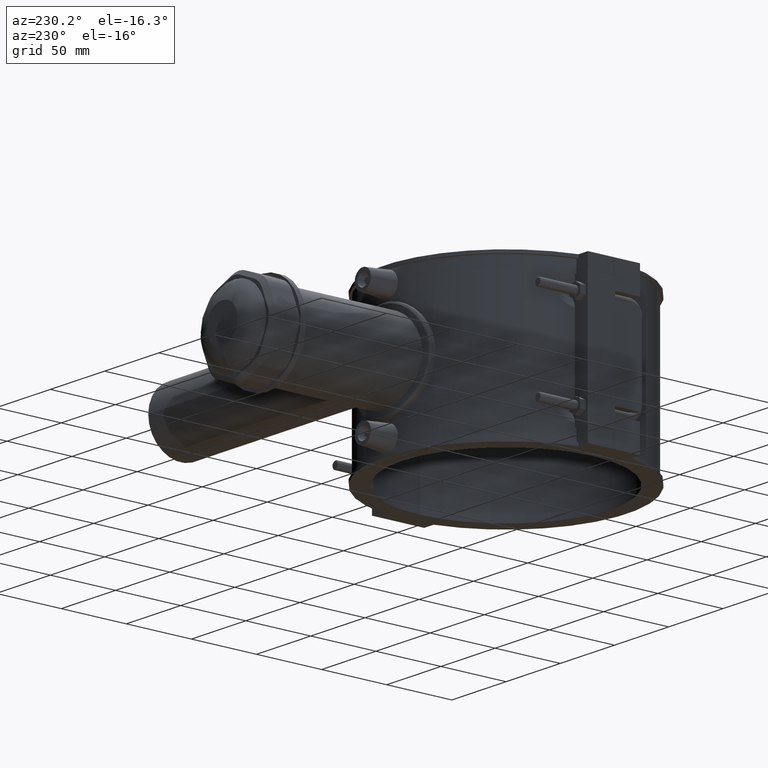
[diagram: clean part render]
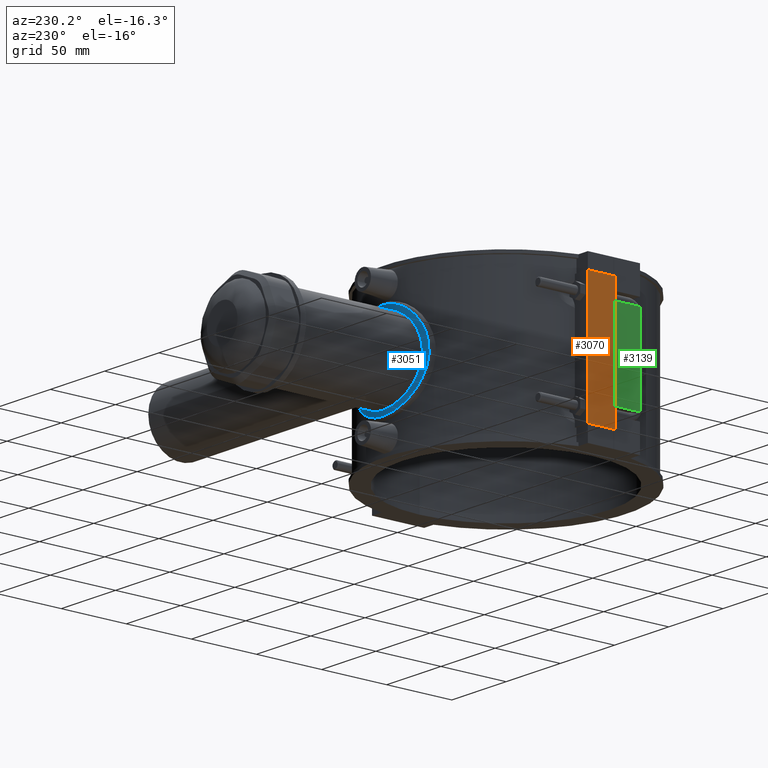
[diagram: same view with three faces highlighted in distinct colors, each labeled with its STEP entity id]
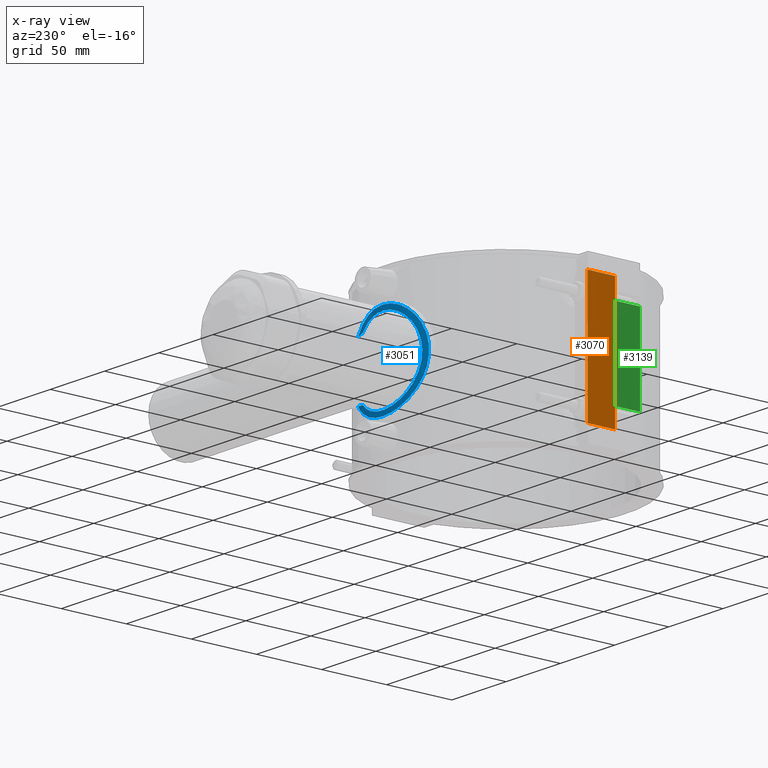
[diagram: x-ray of the same camera — body ghosted, the three highlighted faces saturated]
A machine part, auxiliary view with three faces highlighted in distinct colors.
The next image is the same camera in x-ray (body ghosted, the three faces saturated) — at least one of them is partly hidden behind the body in this view.
Their STEP definitions:

[orange] entity #3070 — the highlighted planar face has unit normal (1, 0, 0).
#147=LINE('',#5463,#426);
#150=LINE('',#5469,#429);
#153=LINE('',#5474,#432);
#166=LINE('',#5531,#445);
#426=VECTOR('',#3802,20.9500000000001);
#429=VECTOR('',#3807,20.9500000000001);
#432=VECTOR('',#3812,94.4);
#445=VECTOR('',#3831,94.4);
#631=PLANE('',#3305);
#928=FACE_OUTER_BOUND('',#1126,.T.);
#1126=EDGE_LOOP('',(#2408,#2409,#2410,#2411));
#1466=VERTEX_POINT('',#5460);
#1467=VERTEX_POINT('',#5462);
#1468=VERTEX_POINT('',#5466);
#1469=VERTEX_POINT('',#5468);
#1810=EDGE_CURVE('',#1467,#1466,#147,.T.);
#1813=EDGE_CURVE('',#1469,#1468,#150,.T.);
#1816=EDGE_CURVE('',#1467,#1468,#153,.T.);
#1835=EDGE_CURVE('',#1466,#1469,#166,.T.);
#2408=ORIENTED_EDGE('',*,*,#1816,.F.);
#2409=ORIENTED_EDGE('',*,*,#1810,.T.);
#2410=ORIENTED_EDGE('',*,*,#1835,.T.);
#2411=ORIENTED_EDGE('',*,*,#1813,.T.);
#3070=ADVANCED_FACE('',(#928),#631,.F.);
#3305=AXIS2_PLACEMENT_3D('',#5530,#3829,#3830);
#3802=DIRECTION('',(0.,-1.,0.));
#3807=DIRECTION('',(0.,1.,0.));
#3812=DIRECTION('',(0.,0.,1.));
#3829=DIRECTION('center_axis',(1.,0.,0.));
#3830=DIRECTION('ref_axis',(0.,1.,0.));
#3831=DIRECTION('',(0.,0.,1.));
#5460=CARTESIAN_POINT('',(-100.5,0.0500000000000078,-47.2));
#5462=CARTESIAN_POINT('',(-100.5,21.0000000000001,-47.2));
#5463=CARTESIAN_POINT('',(-100.5,0.0500000000000078,-47.2));
#5466=CARTESIAN_POINT('',(-100.5,21.0000000000001,47.2));
#5468=CARTESIAN_POINT('',(-100.5,0.0500000000000078,47.2));
#5469=CARTESIAN_POINT('',(-100.5,0.0500000000000078,47.2));
#5474=CARTESIAN_POINT('',(-100.5,21.0000000000001,0.));
#5530=CARTESIAN_POINT('Origin',(-100.5,0.0500000000000081,0.));
#5531=CARTESIAN_POINT('',(-100.5,0.0500000000000081,0.));

[blue] entity #3051 — the highlighted cylindrical surface (partial cylindrical patch) has radius 94.848 mm, axis along (0, 0, -1).
#909=FACE_OUTER_BOUND('',#1100,.T.);
#1100=EDGE_LOOP('',(#2261,#2262,#2263,#2264));
#1278=B_SPLINE_CURVE_WITH_KNOTS('',3,(#4453,#4454,#4455,#4456),
 .UNSPECIFIED.,.F.,.F.,(4,4),(1.96961849916364,2.60579241524687),
 .UNSPECIFIED.);
#1284=B_SPLINE_CURVE_WITH_KNOTS('',3,(#4517,#4518,#4519,#4520),
 .UNSPECIFIED.,.F.,.F.,(4,4),(1.31064725821939,1.94682117432548),
 .UNSPECIFIED.);
#1286=B_SPLINE_CURVE_WITH_KNOTS('',3,(#4769,#4770,#4771,#4772,#4773,#4774,
#4775,#4776,#4777,#4778,#4779,#4780,#4781,#4782,#4783,#4784,#4785,#4786,
#4787,#4788,#4789,#4790,#4791,#4792,#4793,#4794,#4795,#4796,#4797,#4798,
#4799,#4800,#4801,#4802,#4803,#4804,#4805,#4806,#4807,#4808,#4809,#4810,
#4811,#4812,#4813,#4814,#4815,#4816,#4817,#4818),.UNSPECIFIED.,.F.,.F.,
(4,2,2,2,2,2,2,2,2,2,2,2,2,2,2,2,2,2,2,2,2,2,2,2,4),(2.40316341056035,2.90459074452711,
3.4853210730496,4.0660514015721,4.64678173009459,5.22751205861709,5.80824238713958,
6.38897271566208,6.96970304418458,7.55066814818573,8.13163325218688,8.71259835618804,
9.29356346018919,9.87452856419034,10.4554936681915,11.0364587721926,11.6174238761938,
12.1981542047163,12.7788845332388,13.3596148617613,13.9403451902838,14.5210755188063,
15.1018058473288,15.6825361758513,16.183963509818),.UNSPECIFIED.);
#1289=B_SPLINE_CURVE_WITH_KNOTS('',3,(#4986,#4987,#4988,#4989,#4990,#4991,
#4992,#4993,#4994,#4995,#4996,#4997,#4998,#4999,#5000,#5001,#5002),
 .UNSPECIFIED.,.F.,.F.,(4,1,1,1,1,1,1,1,1,1,1,1,1,1,4),(13.2849681082374,
14.272003103926,15.549609695361,16.8272162867959,18.1048228782308,20.6600360611007,
21.511773788724,22.3635115163473,23.2152492439705,25.7704624268404,26.6222001544637,
27.473937882087,28.3256756097103,29.6032822011452,30.5903561125205),
 .UNSPECIFIED.);
#1335=VERTEX_POINT('',#4451);
#1336=VERTEX_POINT('',#4452);
#1341=VERTEX_POINT('',#4507);
#1342=VERTEX_POINT('',#4516);
#1629=EDGE_CURVE('',#1335,#1336,#1278,.T.);
#1635=EDGE_CURVE('',#1342,#1341,#1284,.T.);
#1721=EDGE_CURVE('',#1336,#1342,#1286,.T.);
#1726=EDGE_CURVE('',#1335,#1341,#1289,.T.);
#2261=ORIENTED_EDGE('',*,*,#1629,.T.);
#2262=ORIENTED_EDGE('',*,*,#1721,.T.);
#2263=ORIENTED_EDGE('',*,*,#1635,.T.);
#2264=ORIENTED_EDGE('',*,*,#1726,.F.);
#2972=CYLINDRICAL_SURFACE('',#3264,94.848);
#3051=ADVANCED_FACE('',(#909),#2972,.T.);
#3264=AXIS2_PLACEMENT_3D('',#5003,#3677,#3678);
#3677=DIRECTION('center_axis',(0.,0.,-1.));
#3678=DIRECTION('ref_axis',(1.,0.,0.));
#4451=CARTESIAN_POINT('',(27.5517926027614,90.7581502035681,21.2050327509348));
#4452=CARTESIAN_POINT('',(21.0745909503137,92.4770496951112,22.1860680670375));
#4453=CARTESIAN_POINT('Ctrl Pts',(27.5517926027655,90.7581502035723,21.2050327509497));
#4454=CARTESIAN_POINT('Ctrl Pts',(25.4304632085996,91.4021301368248,21.6071771686545));
#4455=CARTESIAN_POINT('Ctrl Pts',(23.2607782152776,91.9788395714178,21.9273088095801));
#4456=CARTESIAN_POINT('Ctrl Pts',(21.0745909502518,92.4770496949355,22.1860680668526));
#4507=CARTESIAN_POINT('',(27.5517926029555,90.7581502034627,-21.2050327507656));
#4516=CARTESIAN_POINT('',(21.0745909503137,92.4770496951112,-22.1860680670375));
#4517=CARTESIAN_POINT('Ctrl Pts',(21.0745909502518,92.4770496949355,-22.1860680668526));
#4518=CARTESIAN_POINT('Ctrl Pts',(23.2607775049127,91.9788397333028,-21.9273088936596));
#4519=CARTESIAN_POINT('Ctrl Pts',(25.4304621297586,91.4021304643384,-21.607177373179));
#4520=CARTESIAN_POINT('Ctrl Pts',(27.5517926029943,90.7581502035029,-21.2050327509063));
#4769=CARTESIAN_POINT('Ctrl Pts',(21.0745909503106,92.4770496949221,22.1860680670796));
#4770=CARTESIAN_POINT('Ctrl Pts',(19.8680370851232,92.7520112043152,23.3321760250765));
#4771=CARTESIAN_POINT('Ctrl Pts',(18.5336122373782,93.03107993815,24.4103714784953));
#4772=CARTESIAN_POINT('Ctrl Pts',(15.4329286813068,93.5993031168435,26.4992461006475));
#4773=CARTESIAN_POINT('Ctrl Pts',(13.631272856127,93.8825435640115,27.4719233949298));
#4774=CARTESIAN_POINT('Ctrl Pts',(9.86551095491982,94.3526114058744,29.037731979501));
#4775=CARTESIAN_POINT('Ctrl Pts',(7.89815368754498,94.5394500759913,29.6321067919959));
#4776=CARTESIAN_POINT('Ctrl Pts',(3.93330788712414,94.787222458565,30.4133469660293));
#4777=CARTESIAN_POINT('Ctrl Pts',(1.93576776174165,94.848,30.6));
#4778=CARTESIAN_POINT('Ctrl Pts',(-1.93576776174165,94.848,30.6));
#4779=CARTESIAN_POINT('Ctrl Pts',(-3.93330788712413,94.787222458565,30.4133469660293));
#4780=CARTESIAN_POINT('Ctrl Pts',(-7.89815368754497,94.5394500759913,29.6321067919959));
#4781=CARTESIAN_POINT('Ctrl Pts',(-9.86551095491981,94.3526114058744,29.037731979501));
#4782=CARTESIAN_POINT('Ctrl Pts',(-13.631272856127,93.8825435640115,27.4719233949298));
#4783=CARTESIAN_POINT('Ctrl Pts',(-15.4329286813068,93.5993031168435,26.4992461006475));
#4784=CARTESIAN_POINT('Ctrl Pts',(-18.7608374372632,92.9894392408576,24.2572939570489));
#4785=CARTESIAN_POINT('Ctrl Pts',(-20.2870813672055,92.6633751150286,22.9878536414112));
#4786=CARTESIAN_POINT('Ctrl Pts',(-22.9883995704528,92.030439524035,20.2865354381639));
#4787=CARTESIAN_POINT('Ctrl Pts',(-24.2579050577145,91.7008743091418,18.7600336117641));
#4788=CARTESIAN_POINT('Ctrl Pts',(-26.4996186659277,91.0783537268796,15.4322723274951));
#4789=CARTESIAN_POINT('Ctrl Pts',(-27.4720165204803,90.7860327461246,13.6310220407474));
#4790=CARTESIAN_POINT('Ctrl Pts',(-29.0375121241267,90.2974993277936,9.86606655262255));
#4791=CARTESIAN_POINT('Ctrl Pts',(-29.6318519109876,90.1014210770434,7.8990979169259));
#4792=CARTESIAN_POINT('Ctrl Pts',(-30.4132064646925,89.8406901161434,3.93437007268649));
#4793=CARTESIAN_POINT('Ctrl Pts',(-30.6,89.7762947776305,1.93655034667051));
#4794=CARTESIAN_POINT('Ctrl Pts',(-30.6,89.7762947776305,-1.93655034667051));
#4795=CARTESIAN_POINT('Ctrl Pts',(-30.4132064646925,89.8406901161434,-3.93437007268649));
#4796=CARTESIAN_POINT('Ctrl Pts',(-29.6318519109876,90.1014210770433,-7.8990979169259));
#4797=CARTESIAN_POINT('Ctrl Pts',(-29.0375121241267,90.2974993277936,-9.86606655262254));
#4798=CARTESIAN_POINT('Ctrl Pts',(-27.4720165204803,90.7860327461246,-13.6310220407474));
#4799=CARTESIAN_POINT('Ctrl Pts',(-26.4996186659277,91.0783537268796,-15.4322723274951));
#4800=CARTESIAN_POINT('Ctrl Pts',(-24.2579050577145,91.7008743091418,-18.7600336117641));
#4801=CARTESIAN_POINT('Ctrl Pts',(-22.9883995704528,92.030439524035,-20.2865354381639));
#4802=CARTESIAN_POINT('Ctrl Pts',(-20.2870813672055,92.6633751150286,-22.9878536414112));
#4803=CARTESIAN_POINT('Ctrl Pts',(-18.7608374372632,92.9894392408576,-24.2572939570489));
#4804=CARTESIAN_POINT('Ctrl Pts',(-15.4329286813068,93.5993031168435,-26.4992461006475));
#4805=CARTESIAN_POINT('Ctrl Pts',(-13.631272856127,93.8825435640115,-27.4719233949298));
#4806=CARTESIAN_POINT('Ctrl Pts',(-9.86551095491982,94.3526114058744,-29.037731979501));
#4807=CARTESIAN_POINT('Ctrl Pts',(-7.89815368754498,94.5394500759913,-29.6321067919958));
#4808=CARTESIAN_POINT('Ctrl Pts',(-3.93330788712414,94.787222458565,-30.4133469660292));
#4809=CARTESIAN_POINT('Ctrl Pts',(-1.93576776174165,94.848,-30.6));
#4810=CARTESIAN_POINT('Ctrl Pts',(1.93576776174165,94.848,-30.6));
#4811=CARTESIAN_POINT('Ctrl Pts',(3.93330788712413,94.787222458565,-30.4133469660292));
#4812=CARTESIAN_POINT('Ctrl Pts',(7.89815368754498,94.5394500759913,-29.6321067919958));
#4813=CARTESIAN_POINT('Ctrl Pts',(9.86551095491981,94.3526114058744,-29.037731979501));
#4814=CARTESIAN_POINT('Ctrl Pts',(13.631272856127,93.8825435640115,-27.4719233949298));
#4815=CARTESIAN_POINT('Ctrl Pts',(15.4329286813068,93.5993031168435,-26.4992461006475));
#4816=CARTESIAN_POINT('Ctrl Pts',(18.5336122373782,93.03107993815,-24.4103714784953));
#4817=CARTESIAN_POINT('Ctrl Pts',(19.8680370851232,92.7520112043152,-23.3321760250765));
#4818=CARTESIAN_POINT('Ctrl Pts',(21.0745909503106,92.4770496949221,-22.1860680670796));
#4986=CARTESIAN_POINT('Ctrl Pts',(27.5516237691486,90.7581919060968,21.2048906176234));
#4987=CARTESIAN_POINT('Ctrl Pts',(25.5358507863717,91.3701343097647,23.7358400874203));
#4988=CARTESIAN_POINT('Ctrl Pts',(20.093150703295,92.8545513547475,28.8933940423887));
#4989=CARTESIAN_POINT('Ctrl Pts',(9.25508961847493,94.6846200936947,33.9936597785969));
#4990=CARTESIAN_POINT('Ctrl Pts',(-3.87058771553592,95.0726714684077,34.9829389798207));
#4991=CARTESIAN_POINT('Ctrl Pts',(-20.589277695131,93.1991738913552,30.0305064136724));
#4992=CARTESIAN_POINT('Ctrl Pts',(-31.5743431391662,89.5080620157039,18.0357637903753));
#4993=CARTESIAN_POINT('Ctrl Pts',(-35.0761436567204,88.1233791847012,4.26368275947351));
#4994=CARTESIAN_POINT('Ctrl Pts',(-35.0753640193351,88.1237440821363,-4.26516266756401));
#4995=CARTESIAN_POINT('Ctrl Pts',(-31.5722378983639,89.5081009500623,-18.0322823319958));
#4996=CARTESIAN_POINT('Ctrl Pts',(-21.5893461215763,92.861182463492,-28.9438411422464));
#4997=CARTESIAN_POINT('Ctrl Pts',(-8.09359284623823,94.6274719589085,-33.8191659418291));
#4998=CARTESIAN_POINT('Ctrl Pts',(0.528303179728666,94.9795461049767,-34.7476793690265));
#4999=CARTESIAN_POINT('Ctrl Pts',(10.5603111653278,94.4603869545258,-33.3727882756737));
#5000=CARTESIAN_POINT('Ctrl Pts',(20.0921190513188,92.8564720842303,-28.8970192935058));
#5001=CARTESIAN_POINT('Ctrl Pts',(25.535692307104,91.3705791241067,-23.7366596360317));
#5002=CARTESIAN_POINT('Ctrl Pts',(27.5517294532241,90.7582905840434,-21.2049499106304));
#5003=CARTESIAN_POINT('Origin',(0.,0.,59.));

[green] entity #3139 — the highlighted planar face has unit normal (-1, 0, 0).
#243=LINE('',#6087,#522);
#246=LINE('',#6092,#525);
#248=LINE('',#6096,#527);
#263=LINE('',#6128,#542);
#522=VECTOR('',#4076,19.95);
#525=VECTOR('',#4081,64.8);
#527=VECTOR('',#4085,19.95);
#542=VECTOR('',#4120,64.8);
#676=PLANE('',#3401);
#997=FACE_OUTER_BOUND('',#1215,.T.);
#1215=EDGE_LOOP('',(#2698,#2699,#2700,#2701));
#1567=VERTEX_POINT('',#6084);
#1568=VERTEX_POINT('',#6086);
#1569=VERTEX_POINT('',#6090);
#1570=VERTEX_POINT('',#6094);
#1955=EDGE_CURVE('',#1568,#1567,#243,.T.);
#1958=EDGE_CURVE('',#1567,#1569,#246,.T.);
#1960=EDGE_CURVE('',#1569,#1570,#248,.T.);
#1977=EDGE_CURVE('',#1570,#1568,#263,.T.);
#2698=ORIENTED_EDGE('',*,*,#1960,.T.);
#2699=ORIENTED_EDGE('',*,*,#1977,.T.);
#2700=ORIENTED_EDGE('',*,*,#1955,.T.);
#2701=ORIENTED_EDGE('',*,*,#1958,.T.);
#3139=ADVANCED_FACE('',(#997),#676,.T.);
#3401=AXIS2_PLACEMENT_3D('',#6127,#4118,#4119);
#4076=DIRECTION('',(0.,-1.,0.));
#4081=DIRECTION('',(0.,0.,1.));
#4085=DIRECTION('',(0.,1.,0.));
#4118=DIRECTION('center_axis',(-1.,0.,0.));
#4119=DIRECTION('ref_axis',(0.,-1.,0.));
#4120=DIRECTION('',(0.,0.,-1.));
#6084=CARTESIAN_POINT('',(-99.5,-20.,-32.4));
#6086=CARTESIAN_POINT('',(-99.5,-0.0500000000000078,-32.4));
#6087=CARTESIAN_POINT('',(-99.5,1.11022302462516E-14,-32.4));
#6090=CARTESIAN_POINT('',(-99.5,-20.,32.4));
#6092=CARTESIAN_POINT('',(-99.5,-20.,0.));
#6094=CARTESIAN_POINT('',(-99.5,-0.0500000000000078,32.4));
#6096=CARTESIAN_POINT('',(-99.5,1.11022302462516E-14,32.4));
#6127=CARTESIAN_POINT('Origin',(-99.5,20.,0.));
#6128=CARTESIAN_POINT('',(-99.5,-0.0500000000000078,-29.5));